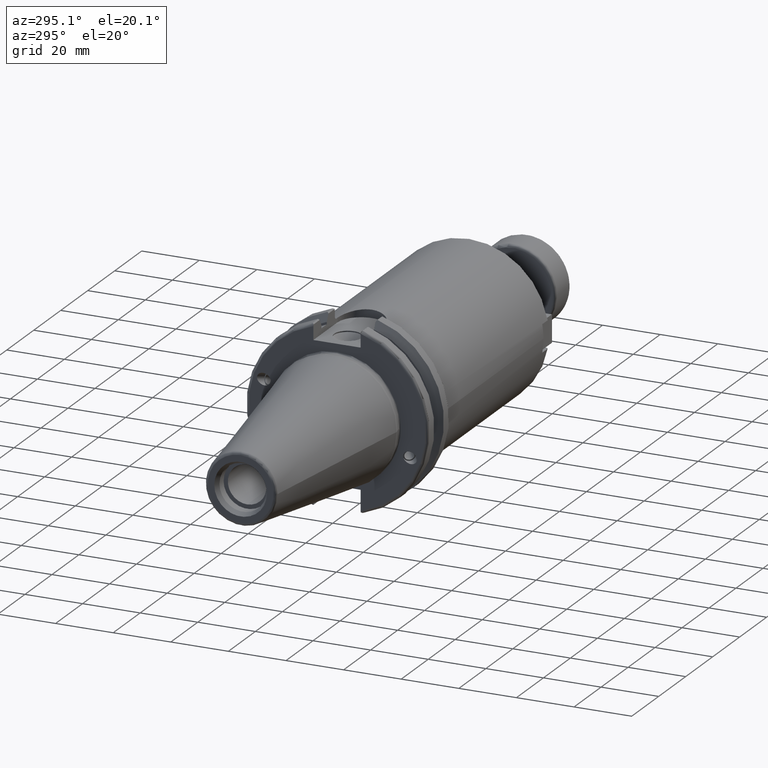
[diagram: clean part render]
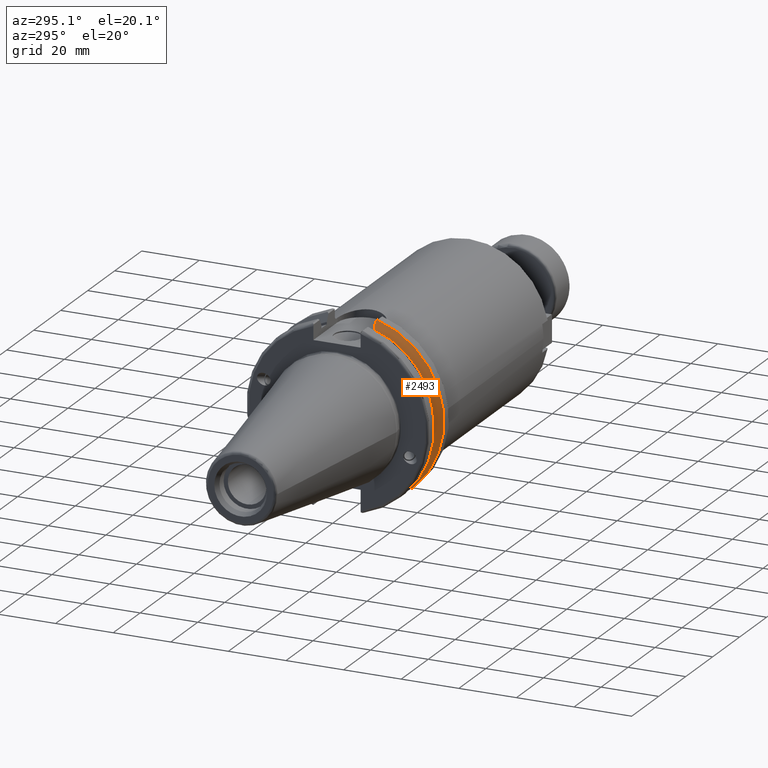
[diagram: same view with one face highlighted and labeled with its STEP entity id]
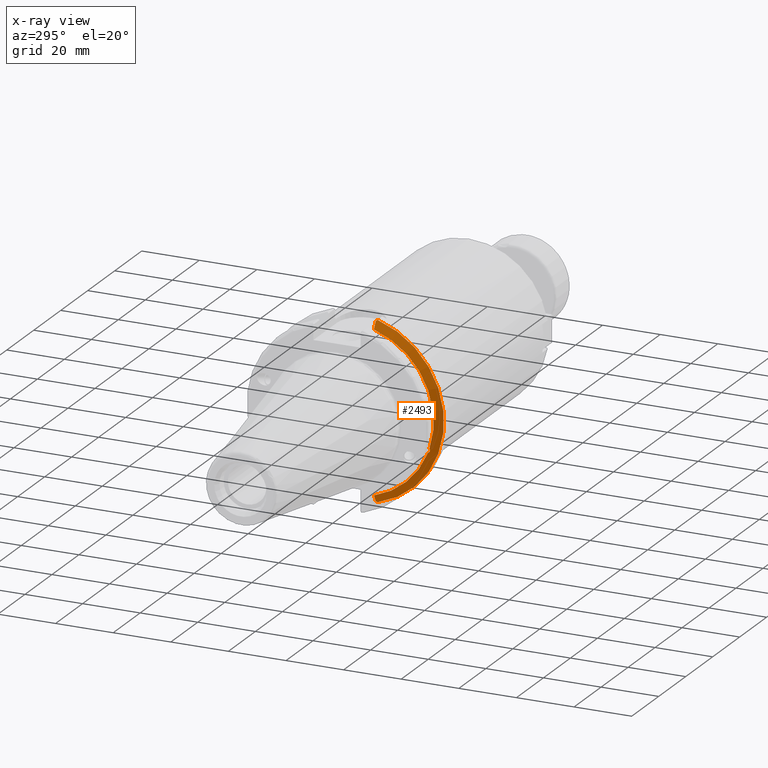
[diagram: x-ray of the same camera — body ghosted, the highlighted face saturated]
A machine part, auxiliary view. The second image highlights one B-rep face of the part: STEP entity #2493.
The next image is the same camera in x-ray: the body ghosted, the highlighted face saturated — about 0% of this face is hidden behind the body in this view.
In plain terms, the highlighted conical surface has half-angle 60 deg.
Its self-contained STEP definition (entity closure, byte-faithful):
#53=(
BOUNDED_CURVE()
B_SPLINE_CURVE(2,(#4260,#4261,#4262),.UNSPECIFIED.,.F.,.F.)
B_SPLINE_CURVE_WITH_KNOTS((3,3),(0.,0.276549142795441),.UNSPECIFIED.)
CURVE()
GEOMETRIC_REPRESENTATION_ITEM()
RATIONAL_B_SPLINE_CURVE((1.,1.00095203903848,1.0003161444499))
REPRESENTATION_ITEM('')
);
#54=(
BOUNDED_CURVE()
B_SPLINE_CURVE(2,(#4264,#4265,#4266),.UNSPECIFIED.,.F.,.F.)
B_SPLINE_CURVE_WITH_KNOTS((3,3),(0.,0.0639048713675827),.UNSPECIFIED.)
CURVE()
GEOMETRIC_REPRESENTATION_ITEM()
RATIONAL_B_SPLINE_CURVE((1.,1.0002844421829,1.00047644010585))
REPRESENTATION_ITEM('')
);
#55=(
BOUNDED_CURVE()
B_SPLINE_CURVE(2,(#4270,#4271,#4272),.UNSPECIFIED.,.F.,.F.)
B_SPLINE_CURVE_WITH_KNOTS((3,3),(0.329353533631235,0.393258405001021),
 .UNSPECIFIED.)
CURVE()
GEOMETRIC_REPRESENTATION_ITEM()
RATIONAL_B_SPLINE_CURVE((1.00047644010603,1.00028444218301,1.))
REPRESENTATION_ITEM('')
);
#56=(
BOUNDED_CURVE()
B_SPLINE_CURVE(2,(#4274,#4275,#4276),.UNSPECIFIED.,.F.,.F.)
B_SPLINE_CURVE_WITH_KNOTS((3,3),(0.0550586467398929,0.331607789535851),
 .UNSPECIFIED.)
CURVE()
GEOMETRIC_REPRESENTATION_ITEM()
RATIONAL_B_SPLINE_CURVE((1.00031614444973,1.00095203903796,1.))
REPRESENTATION_ITEM('')
);
#157=CONICAL_SURFACE('',#2793,30.3546886482472,1.0471975511966);
#236=CIRCLE('',#2794,28.9593772964944);
#237=CIRCLE('',#2795,31.75);
#238=CIRCLE('',#2796,28.9593772964944);
#364=FACE_OUTER_BOUND('',#520,.T.);
#520=EDGE_LOOP('',(#1837,#1838,#1839,#1840,#1841,#1842,#1843,#1844,#1845));
#985=B_SPLINE_CURVE_WITH_KNOTS('',3,(#4167,#4168,#4169,#4170,#4171,#4172,
#4173,#4174),.UNSPECIFIED.,.F.,.F.,(4,2,2,4),(0.451995700189025,0.464547828547662,
0.504528771685167,0.544509714822672),.UNSPECIFIED.);
#989=B_SPLINE_CURVE_WITH_KNOTS('',3,(#4229,#4230,#4231,#4232,#4233,#4234,
#4235,#4236),.UNSPECIFIED.,.F.,.F.,(4,2,2,4),(0.544509714822672,0.584490657960178,
0.624471601097683,0.637023729456322),.UNSPECIFIED.);
#1082=VERTEX_POINT('',#4164);
#1083=VERTEX_POINT('',#4166);
#1090=VERTEX_POINT('',#4227);
#1096=VERTEX_POINT('',#4257);
#1097=VERTEX_POINT('',#4259);
#1098=VERTEX_POINT('',#4263);
#1099=VERTEX_POINT('',#4267);
#1100=VERTEX_POINT('',#4269);
#1101=VERTEX_POINT('',#4273);
#1360=EDGE_CURVE('',#1083,#1082,#985,.T.);
#1368=EDGE_CURVE('',#1082,#1090,#989,.T.);
#1377=EDGE_CURVE('',#1090,#1096,#236,.T.);
#1378=EDGE_CURVE('',#1096,#1097,#53,.T.);
#1379=EDGE_CURVE('',#1098,#1097,#54,.T.);
#1380=EDGE_CURVE('',#1099,#1098,#237,.T.);
#1381=EDGE_CURVE('',#1100,#1099,#55,.T.);
#1382=EDGE_CURVE('',#1100,#1101,#56,.T.);
#1383=EDGE_CURVE('',#1101,#1083,#238,.T.);
#1837=ORIENTED_EDGE('',*,*,#1360,.T.);
#1838=ORIENTED_EDGE('',*,*,#1368,.T.);
#1839=ORIENTED_EDGE('',*,*,#1377,.T.);
#1840=ORIENTED_EDGE('',*,*,#1378,.T.);
#1841=ORIENTED_EDGE('',*,*,#1379,.F.);
#1842=ORIENTED_EDGE('',*,*,#1380,.F.);
#1843=ORIENTED_EDGE('',*,*,#1381,.F.);
#1844=ORIENTED_EDGE('',*,*,#1382,.T.);
#1845=ORIENTED_EDGE('',*,*,#1383,.T.);
#2493=ADVANCED_FACE('',(#364),#157,.T.);
#2793=AXIS2_PLACEMENT_3D('',#4256,#3239,#3240);
#2794=AXIS2_PLACEMENT_3D('',#4258,#3241,#3242);
#2795=AXIS2_PLACEMENT_3D('',#4268,#3243,#3244);
#2796=AXIS2_PLACEMENT_3D('',#4277,#3245,#3246);
#3239=DIRECTION('center_axis',(1.,0.,0.));
#3240=DIRECTION('ref_axis',(0.,-1.,-1.22464679914735E-16));
#3241=DIRECTION('center_axis',(1.,0.,0.));
#3242=DIRECTION('ref_axis',(0.,0.,-1.));
#3243=DIRECTION('center_axis',(1.,0.,0.));
#3244=DIRECTION('ref_axis',(0.,0.,-1.));
#3245=DIRECTION('center_axis',(1.,0.,0.));
#3246=DIRECTION('ref_axis',(0.,0.,-1.));
#4164=CARTESIAN_POINT('',(13.2341,-27.51401829017,-10.0142836826777));
#4166=CARTESIAN_POINT('',(13.0491,-27.4956274489925,-9.09043478536245));
#4167=CARTESIAN_POINT('Ctrl Pts',(13.0491,-27.4956274489925,-9.09043478536245));
#4168=CARTESIAN_POINT('Ctrl Pts',(13.0632204071996,-27.5087667900418,-9.12860597076217));
#4169=CARTESIAN_POINT('Ctrl Pts',(13.0766929817857,-27.5206055003513,-9.16696618806877));
#4170=CARTESIAN_POINT('Ctrl Pts',(13.130081441159,-27.5642934663232,-9.32791534028656));
#4171=CARTESIAN_POINT('Ctrl Pts',(13.1682197084175,-27.5867382255984,-9.46717946402648));
#4172=CARTESIAN_POINT('Ctrl Pts',(13.2204106446058,-27.5847569104122,-9.74771639360671));
#4173=CARTESIAN_POINT('Ctrl Pts',(13.2341,-27.559599249844,-9.8890510252165));
#4174=CARTESIAN_POINT('Ctrl Pts',(13.2341,-27.51401829017,-10.0142836826777));
#4227=CARTESIAN_POINT('',(13.0491,-26.9060914640648,-10.7101715919071));
#4229=CARTESIAN_POINT('Ctrl Pts',(13.2341,-27.51401829017,-10.0142836826777));
#4230=CARTESIAN_POINT('Ctrl Pts',(13.2341,-27.4684373304961,-10.139516340139));
#4231=CARTESIAN_POINT('Ctrl Pts',(13.2204106446058,-27.3968610665578,-10.2639559818059));
#4232=CARTESIAN_POINT('Ctrl Pts',(13.1682197084175,-27.2180531796526,-10.4801333026531));
#4233=CARTESIAN_POINT('Ctrl Pts',(13.130081441159,-27.1113422433189,-10.5723885976054));
#4234=CARTESIAN_POINT('Ctrl Pts',(13.0766929817857,-26.9744191989197,-10.6676007180673));
#4235=CARTESIAN_POINT('Ctrl Pts',(13.0632204071996,-26.9406927482839,-10.6893765730703));
#4236=CARTESIAN_POINT('Ctrl Pts',(13.0491,-26.9060914640648,-10.7101715919071));
#4256=CARTESIAN_POINT('Origin',(13.8546833845378,0.,0.));
#4257=CARTESIAN_POINT('',(13.0491,-8.19,-27.7771386827498));
#4258=CARTESIAN_POINT('Origin',(13.0491,0.,0.));
#4259=CARTESIAN_POINT('',(14.3815146964874,-8.19,-30.1755016258903));
#4260=CARTESIAN_POINT('Ctrl Pts',(13.0491,-8.19,-27.7771386827498));
#4261=CARTESIAN_POINT('Ctrl Pts',(13.6877364384886,-8.19,-28.930368953993));
#4262=CARTESIAN_POINT('Ctrl Pts',(14.3815146964874,-8.19,-30.1755016258903));
#4263=CARTESIAN_POINT('',(14.6602667690756,-8.67204822802686,-30.5427254764662));
#4264=CARTESIAN_POINT('Ctrl Pts',(14.6602667690756,-8.67204822802687,-30.5427254764662));
#4265=CARTESIAN_POINT('Ctrl Pts',(14.5192085187837,-8.42917748262644,-30.357706789263));
#4266=CARTESIAN_POINT('Ctrl Pts',(14.3815146964874,-8.19,-30.1755016258903));
#4267=CARTESIAN_POINT('',(14.6602667690756,-8.67204822802685,30.5427254764662));
#4268=CARTESIAN_POINT('Origin',(14.6602667690756,0.,0.));
#4269=CARTESIAN_POINT('',(14.3815146964874,-8.18999999999999,30.1755016258903));
#4270=CARTESIAN_POINT('Ctrl Pts',(14.3815146964874,-8.19,30.1755016258903));
#4271=CARTESIAN_POINT('Ctrl Pts',(14.5192085187884,-8.42917748263459,30.3577067892692));
#4272=CARTESIAN_POINT('Ctrl Pts',(14.6602667690756,-8.67204822802686,30.5427254764662));
#4273=CARTESIAN_POINT('',(13.0491,-8.19,27.7771386827498));
#4274=CARTESIAN_POINT('Ctrl Pts',(14.3815146964874,-8.18999999999999,30.1755016258903));
#4275=CARTESIAN_POINT('Ctrl Pts',(13.6877364384816,-8.18999999999999,28.9303689539805));
#4276=CARTESIAN_POINT('Ctrl Pts',(13.0491,-8.19,27.7771386827498));
#4277=CARTESIAN_POINT('Origin',(13.0491,0.,0.));